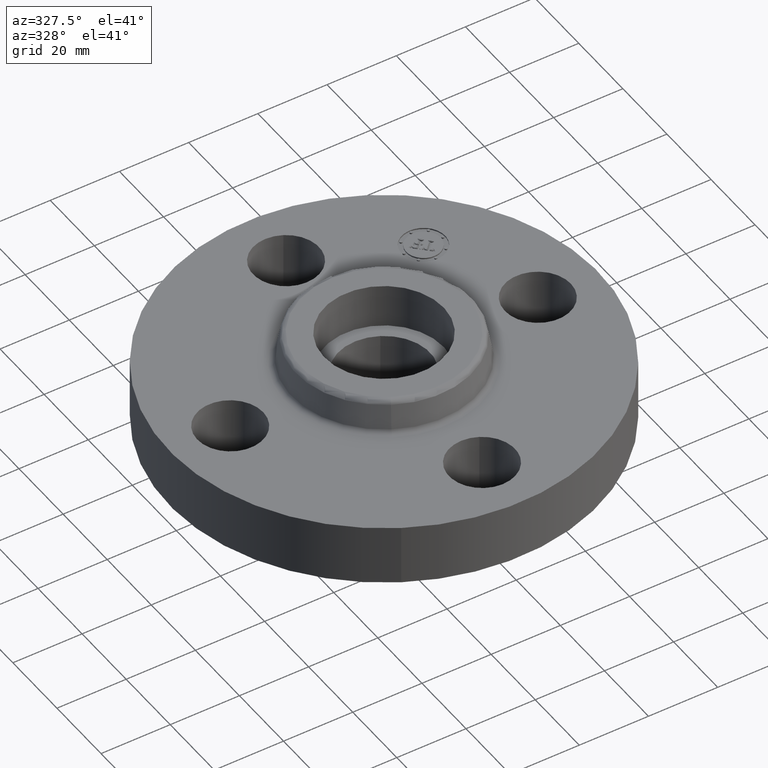
[diagram: clean part render]
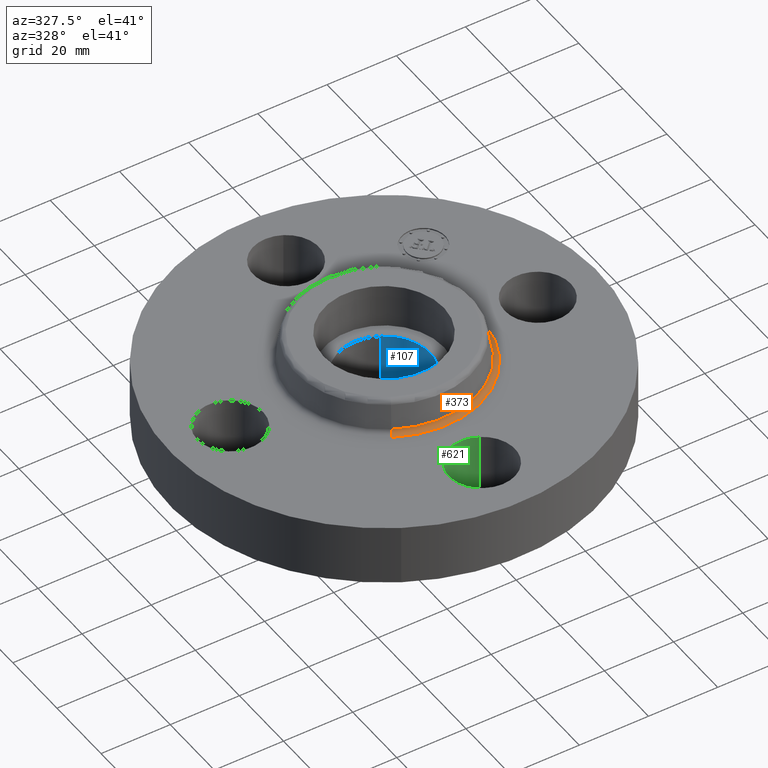
[diagram: same view with three faces highlighted in distinct colors, each labeled with its STEP entity id]
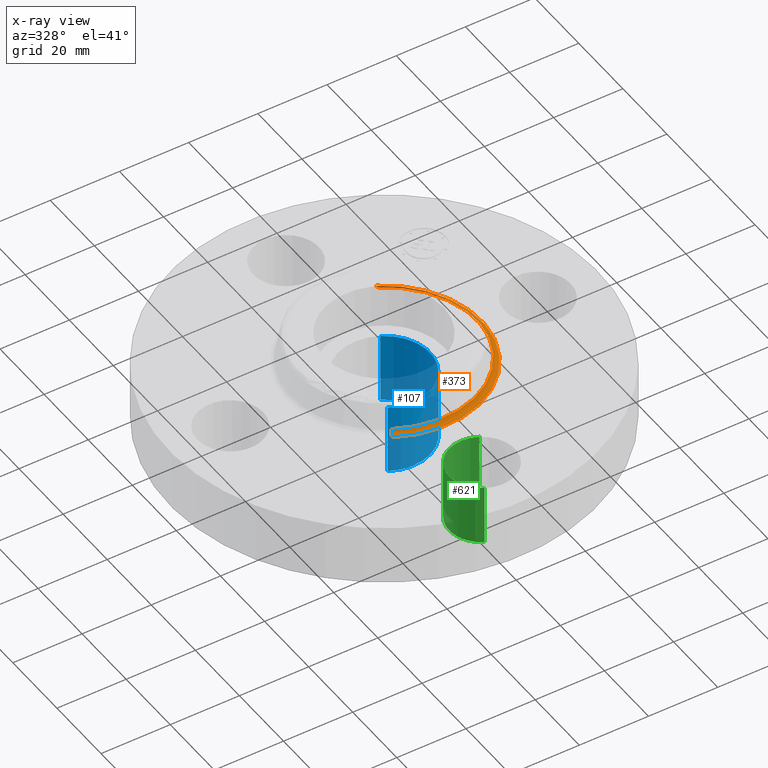
[diagram: x-ray of the same camera — body ghosted, the three highlighted faces saturated]
A machine part, auxiliary view with three faces highlighted in distinct colors.
The next image is the same camera in x-ray (body ghosted, the three faces saturated) — at least one of them is partly hidden behind the body in this view.
Their STEP definitions:

[orange] entity #373 — the highlighted toroidal blend (fillet) surface has major radius 28.2028 mm and minor (blend) radius 1.524 mm.
#337=AXIS2_PLACEMENT_3D('Torus Axis2P3D',#334,#335,#336) ;
#341=AXIS2_PLACEMENT_3D('Circle Axis2P3D',#339,#340,$) ;
#350=AXIS2_PLACEMENT_3D('Circle Axis2P3D',#348,#349,$) ;
#357=AXIS2_PLACEMENT_3D('Circle Axis2P3D',#355,#356,$) ;
#364=AXIS2_PLACEMENT_3D('Circle Axis2P3D',#362,#363,$) ;
#334=CARTESIAN_POINT('Axis2P3D Location',(0.,0.,0.750000000003)) ;
#339=CARTESIAN_POINT('Axis2P3D Location',(0.,0.,0.690000000003)) ;
#343=CARTESIAN_POINT('Vertex',(0.53232821848,0.974420267848,0.690000000003)) ;
#345=CARTESIAN_POINT('Vertex',(-0.53232821848,-0.974420267848,0.690000000003)) ;
#348=CARTESIAN_POINT('Axis2P3D Location',(0.53232821848,0.974420267848,0.750000000003)) ;
#352=CARTESIAN_POINT('Vertex',(0.503999699235,0.922565261197,0.739581109343)) ;
#355=CARTESIAN_POINT('Axis2P3D Location',(0.,0.,0.739581109343)) ;
#359=CARTESIAN_POINT('Vertex',(-0.503999699235,-0.922565261197,0.739581109343)) ;
#362=CARTESIAN_POINT('Axis2P3D Location',(-0.53232821848,-0.974420267848,0.750000000003)) ;
#335=DIRECTION('Axis2P3D Direction',(0.,0.,-0.0393700787402)) ;
#336=DIRECTION('Axis2P3D XDirection',(-0.0188750212049,-0.0345504945626,0.)) ;
#340=DIRECTION('Axis2P3D Direction',(0.,0.,-0.0393700787402)) ;
#349=DIRECTION('Axis2P3D Direction',(-0.0345504945626,0.0188750212049,0.)) ;
#356=DIRECTION('Axis2P3D Direction',(0.,0.,-0.0393700787402)) ;
#363=DIRECTION('Axis2P3D Direction',(0.0345504945626,-0.0188750212049,0.)) ;
#368=ORIENTED_EDGE('',*,*,#347,.F.) ;
#369=ORIENTED_EDGE('',*,*,#354,.T.) ;
#370=ORIENTED_EDGE('',*,*,#361,.T.) ;
#371=ORIENTED_EDGE('',*,*,#366,.F.) ;
#373=ADVANCED_FACE('PartBody',(#372),#338,.F.) ;
#342=CIRCLE('generated circle',#341,1.11034597788) ;
#351=CIRCLE('generated circle',#350,0.0600000000002) ;
#358=CIRCLE('generated circle',#357,1.05125751269) ;
#365=CIRCLE('generated circle',#364,0.0600000000002) ;
#338=TOROIDAL_SURFACE('homeo Torus',#337,1.11034597788,0.0600000000002) ;
#347=EDGE_CURVE('',#344,#346,#342,.T.) ;
#354=EDGE_CURVE('',#344,#353,#351,.T.) ;
#361=EDGE_CURVE('',#353,#360,#358,.T.) ;
#366=EDGE_CURVE('',#346,#360,#365,.T.) ;
#367=EDGE_LOOP('',(#368,#369,#370,#371)) ;
#372=FACE_OUTER_BOUND('',#367,.T.) ;
#344=VERTEX_POINT('',#343) ;
#346=VERTEX_POINT('',#345) ;
#353=VERTEX_POINT('',#352) ;
#360=VERTEX_POINT('',#359) ;

[blue] entity #107 — the highlighted cylindrical surface (partial cylindrical patch) has radius 13.3223 mm, axis along (0, 0, -1).
#69=AXIS2_PLACEMENT_3D('Circle Axis2P3D',#67,#68,$) ;
#80=AXIS2_PLACEMENT_3D('Cylinder Axis2P3D',#77,#78,#79) ;
#91=AXIS2_PLACEMENT_3D('Circle Axis2P3D',#89,#90,$) ;
#62=CARTESIAN_POINT('Vertex',(-0.251458694999,-0.460292053713,0.560000000002)) ;
#64=CARTESIAN_POINT('Vertex',(0.251458694999,0.460292053713,0.560000000002)) ;
#67=CARTESIAN_POINT('Axis2P3D Location',(1.39870617276E-016,-3.49676543189E-017,0.560000000002)) ;
#77=CARTESIAN_POINT('Axis2P3D Location',(0.,0.,0.405000000002)) ;
#82=CARTESIAN_POINT('Line Origine',(0.251458694999,0.460292053713,0.155000000001)) ;
#86=CARTESIAN_POINT('Vertex',(0.251458694999,0.460292053713,-0.250000000001)) ;
#89=CARTESIAN_POINT('Axis2P3D Location',(0.,0.,-0.250000000001)) ;
#93=CARTESIAN_POINT('Vertex',(-0.251458694999,-0.460292053713,-0.250000000001)) ;
#96=CARTESIAN_POINT('Line Origine',(-0.251458694999,-0.460292053713,0.155000000001)) ;
#68=DIRECTION('Axis2P3D Direction',(0.,0.,-0.0393700787402)) ;
#78=DIRECTION('Axis2P3D Direction',(0.,0.,-0.0393700787402)) ;
#79=DIRECTION('Axis2P3D XDirection',(-0.0188750212049,-0.0345504945626,0.)) ;
#83=DIRECTION('Vector Direction',(0.,0.,-0.0393700787402)) ;
#90=DIRECTION('Axis2P3D Direction',(0.,0.,-0.0393700787402)) ;
#97=DIRECTION('Vector Direction',(0.,0.,-0.0393700787402)) ;
#84=VECTOR('Line Direction',#83,0.0393700787402) ;
#98=VECTOR('Line Direction',#97,0.0393700787402) ;
#102=ORIENTED_EDGE('',*,*,#88,.T.) ;
#103=ORIENTED_EDGE('',*,*,#95,.T.) ;
#104=ORIENTED_EDGE('',*,*,#100,.F.) ;
#105=ORIENTED_EDGE('',*,*,#71,.F.) ;
#107=ADVANCED_FACE('PartBody',(#106),#81,.F.) ;
#70=CIRCLE('generated circle',#69,0.524500000002) ;
#92=CIRCLE('generated circle',#91,0.524500000002) ;
#81=CYLINDRICAL_SURFACE('generated cylinder',#80,0.524500000002) ;
#71=EDGE_CURVE('',#65,#63,#70,.T.) ;
#88=EDGE_CURVE('',#65,#87,#85,.T.) ;
#95=EDGE_CURVE('',#87,#94,#92,.T.) ;
#100=EDGE_CURVE('',#63,#94,#99,.T.) ;
#101=EDGE_LOOP('',(#102,#103,#104,#105)) ;
#106=FACE_OUTER_BOUND('',#101,.T.) ;
#85=LINE('Line',#82,#84) ;
#99=LINE('Line',#96,#98) ;
#63=VERTEX_POINT('',#62) ;
#65=VERTEX_POINT('',#64) ;
#87=VERTEX_POINT('',#86) ;
#94=VERTEX_POINT('',#93) ;

[green] entity #621 — the highlighted cylindrical surface (partial cylindrical patch) has radius 9.525 mm, axis along (0, -0, -1).
#247=AXIS2_PLACEMENT_3D('Circle Axis2P3D',#245,#246,$) ;
#594=AXIS2_PLACEMENT_3D('Cylinder Axis2P3D',#591,#592,#593) ;
#612=AXIS2_PLACEMENT_3D('Circle Axis2P3D',#610,#611,$) ;
#240=CARTESIAN_POINT('Vertex',(0.179784576977,-1.4209065393,0.)) ;
#242=CARTESIAN_POINT('Vertex',(-0.179784576977,-2.07909346072,0.)) ;
#245=CARTESIAN_POINT('Axis2P3D Location',(-3.49676543189E-016,-1.75000000001,0.)) ;
#591=CARTESIAN_POINT('Axis2P3D Location',(-1.72584639625E-016,-1.75000000001,0.686062992129)) ;
#596=CARTESIAN_POINT('Line Origine',(-0.179784576977,-2.07909346072,0.345000000001)) ;
#600=CARTESIAN_POINT('Vertex',(-0.179784576977,-2.07909346072,0.690000000003)) ;
#603=CARTESIAN_POINT('Line Origine',(0.179784576977,-1.4209065393,0.345000000001)) ;
#607=CARTESIAN_POINT('Vertex',(0.179784576977,-1.4209065393,0.690000000003)) ;
#610=CARTESIAN_POINT('Axis2P3D Location',(-1.72584639625E-016,-1.75000000001,0.690000000003)) ;
#246=DIRECTION('Axis2P3D Direction',(0.,0.,-0.0393700787402)) ;
#592=DIRECTION('Axis2P3D Direction',(0.,-0.,-0.0393700787402)) ;
#593=DIRECTION('Axis2P3D XDirection',(0.0188750212049,0.0345504945626,-0.)) ;
#597=DIRECTION('Vector Direction',(0.,0.,-0.0393700787402)) ;
#604=DIRECTION('Vector Direction',(0.,0.,-0.0393700787402)) ;
#611=DIRECTION('Axis2P3D Direction',(0.,-0.,-0.0393700787402)) ;
#598=VECTOR('Line Direction',#597,0.0393700787402) ;
#605=VECTOR('Line Direction',#604,0.0393700787402) ;
#616=ORIENTED_EDGE('',*,*,#602,.F.) ;
#617=ORIENTED_EDGE('',*,*,#249,.T.) ;
#618=ORIENTED_EDGE('',*,*,#609,.T.) ;
#619=ORIENTED_EDGE('',*,*,#614,.F.) ;
#621=ADVANCED_FACE('PartBody',(#620),#595,.F.) ;
#248=CIRCLE('generated circle',#247,0.375000000001) ;
#613=CIRCLE('generated circle',#612,0.375000000001) ;
#595=CYLINDRICAL_SURFACE('generated cylinder',#594,0.375000000001) ;
#249=EDGE_CURVE('',#243,#241,#248,.T.) ;
#602=EDGE_CURVE('',#243,#601,#599,.F.) ;
#609=EDGE_CURVE('',#241,#608,#606,.F.) ;
#614=EDGE_CURVE('',#601,#608,#613,.T.) ;
#615=EDGE_LOOP('',(#616,#617,#618,#619)) ;
#620=FACE_OUTER_BOUND('',#615,.T.) ;
#599=LINE('Line',#596,#598) ;
#606=LINE('Line',#603,#605) ;
#241=VERTEX_POINT('',#240) ;
#243=VERTEX_POINT('',#242) ;
#601=VERTEX_POINT('',#600) ;
#608=VERTEX_POINT('',#607) ;